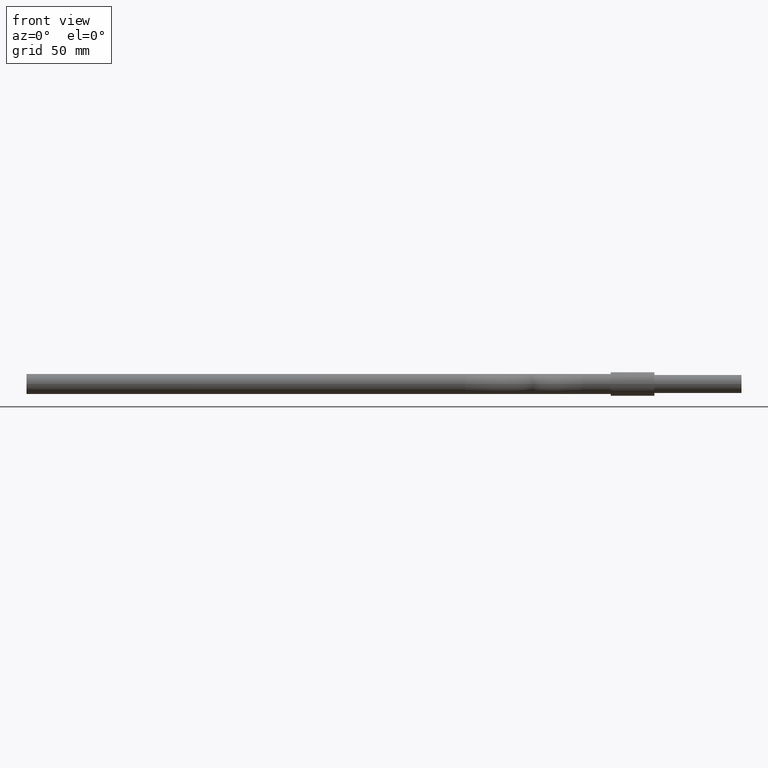
[diagram: clean part render]
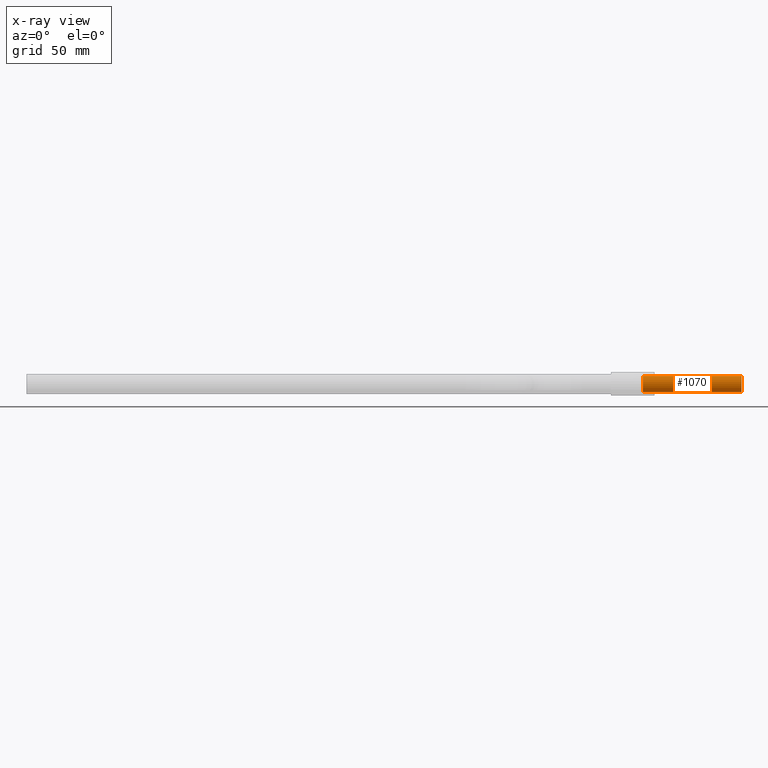
[diagram: x-ray — body ghosted, one internal face saturated and labeled with its STEP entity id]
A machine part, front view, then the same camera in x-ray: the body is ghosted and one INTERNAL B-rep face — a face not visible from any outside direction — is saturated and labeled: STEP entity #1070.
In plain terms, the highlighted cylindrical surface (edge-blend (fillet) strip) has radius 3.7211 mm, axis along (1, 0, 0).
Its self-contained STEP definition (entity closure, byte-faithful):
#1 = VERTEX_POINT ( 'NONE', #1264 ) ;
#44 = VECTOR ( 'NONE', #1141, 39.37007874015748143 ) ;
#114 = DIRECTION ( 'NONE',  ( 1.000000000000000000, 1.836970198721030181E-16, 0.0000000000000000000 ) ) ;
#150 = LINE ( 'NONE', #593, #960 ) ;
#197 = CARTESIAN_POINT ( 'NONE',  ( -1.699899999999999745, -0.05000000000000028727, -0.1377034857946595192 ) ) ;
#202 = CARTESIAN_POINT ( 'NONE',  ( -1.699899999999999745, -3.414809992080329023E-16, 0.0000000000000000000 ) ) ;
#218 = CIRCLE ( 'NONE', #335, 0.1464999999999999913 ) ;
#231 = CARTESIAN_POINT ( 'NONE',  ( -1.699899999999999745, -0.05000000000000028727, 0.1377034857946595192 ) ) ;
#253 = AXIS2_PLACEMENT_3D ( 'NONE', #202, #786, #276 ) ;
#276 = DIRECTION ( 'NONE',  ( 0.0000000000000000000, 1.000000000000000000, 0.0000000000000000000 ) ) ;
#286 = CARTESIAN_POINT ( 'NONE',  ( -1.699899999999999745, -3.414809992080329023E-16, 0.0000000000000000000 ) ) ;
#317 = DIRECTION ( 'NONE',  ( -1.836971832077128759E-16, 1.000000000000000000, 0.0000000000000000000 ) ) ;
#335 = AXIS2_PLACEMENT_3D ( 'NONE', #286, #114, #626 ) ;
#418 = VERTEX_POINT ( 'NONE', #197 ) ;
#483 = EDGE_CURVE ( 'NONE', #625, #899, #1075, .T. ) ;
#593 = CARTESIAN_POINT ( 'NONE',  ( -1.699899999999999745, -0.05000000000000028727, -0.1377034857946595192 ) ) ;
#625 = VERTEX_POINT ( 'NONE', #813 ) ;
#626 = DIRECTION ( 'NONE',  ( 0.0000000000000000000, 1.000000000000000000, 0.0000000000000000000 ) ) ;
#653 = CIRCLE ( 'NONE', #823, 0.1464999999999999913 ) ;
#723 = EDGE_CURVE ( 'NONE', #899, #1, #653, .T. ) ;
#774 = DIRECTION ( 'NONE',  ( 1.000000000000000000, 1.836970198721030181E-16, 0.0000000000000000000 ) ) ;
#786 = DIRECTION ( 'NONE',  ( 1.000000000000000000, 1.836970198721030181E-16, 0.0000000000000000000 ) ) ;
#813 = CARTESIAN_POINT ( 'NONE',  ( -1.699899999999999745, -0.05000000000000028727, 0.1377034857946595192 ) ) ;
#823 = AXIS2_PLACEMENT_3D ( 'NONE', #924, #774, #317 ) ;
#824 = ORIENTED_EDGE ( 'NONE', *, *, #723, .F. ) ;
#848 = CYLINDRICAL_SURFACE ( 'NONE', #253, 0.1464999999999999913 ) ;
#852 = CARTESIAN_POINT ( 'NONE',  ( 0.0001000000000000890856, -0.05000000000000000971, 0.1377034857946595192 ) ) ;
#877 = FACE_OUTER_BOUND ( 'NONE', #1235, .T. ) ;
#899 = VERTEX_POINT ( 'NONE', #852 ) ;
#902 = ORIENTED_EDGE ( 'NONE', *, *, #1247, .T. ) ;
#924 = CARTESIAN_POINT ( 'NONE',  ( 0.0001000000000000890856, 0.0000000000000000000, 0.0000000000000000000 ) ) ;
#960 = VECTOR ( 'NONE', #1018, 39.37007874015748143 ) ;
#1018 = DIRECTION ( 'NONE',  ( 1.000000000000000000, 1.836970198721030181E-16, 0.0000000000000000000 ) ) ;
#1062 = ORIENTED_EDGE ( 'NONE', *, *, #483, .F. ) ;
#1070 = ADVANCED_FACE ( 'NONE', ( #877 ), #848, .T. ) ;
#1075 = LINE ( 'NONE', #231, #44 ) ;
#1141 = DIRECTION ( 'NONE',  ( 1.000000000000000000, 1.836970198721030181E-16, 0.0000000000000000000 ) ) ;
#1198 = EDGE_CURVE ( 'NONE', #625, #418, #218, .T. ) ;
#1235 = EDGE_LOOP ( 'NONE', ( #824, #1062, #1289, #902 ) ) ;
#1247 = EDGE_CURVE ( 'NONE', #418, #1, #150, .T. ) ;
#1264 = CARTESIAN_POINT ( 'NONE',  ( 0.0001000000000000890856, -0.05000000000000000971, -0.1377034857946595192 ) ) ;
#1289 = ORIENTED_EDGE ( 'NONE', *, *, #1198, .T. ) ;